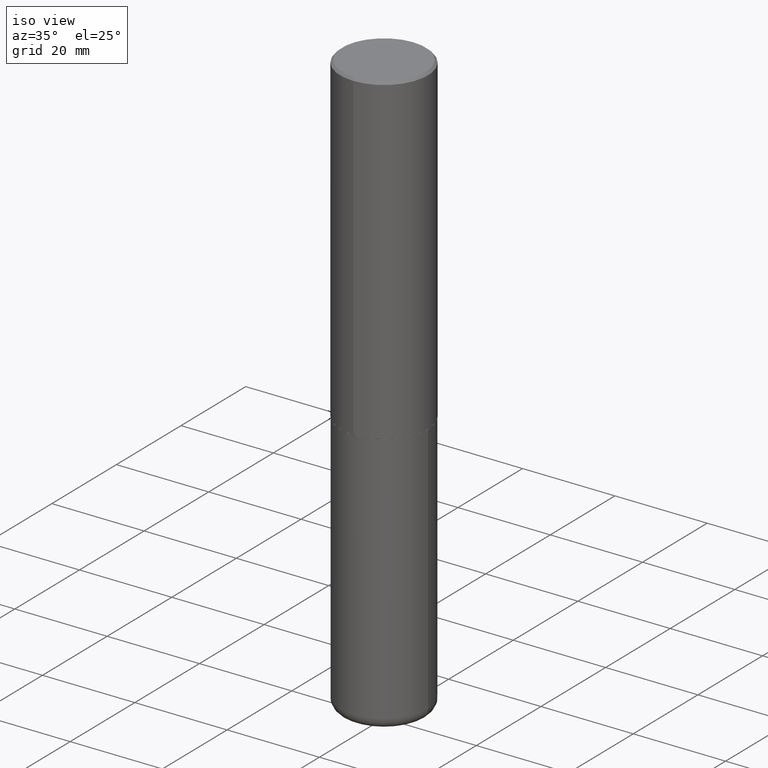
[diagram: clean part render]
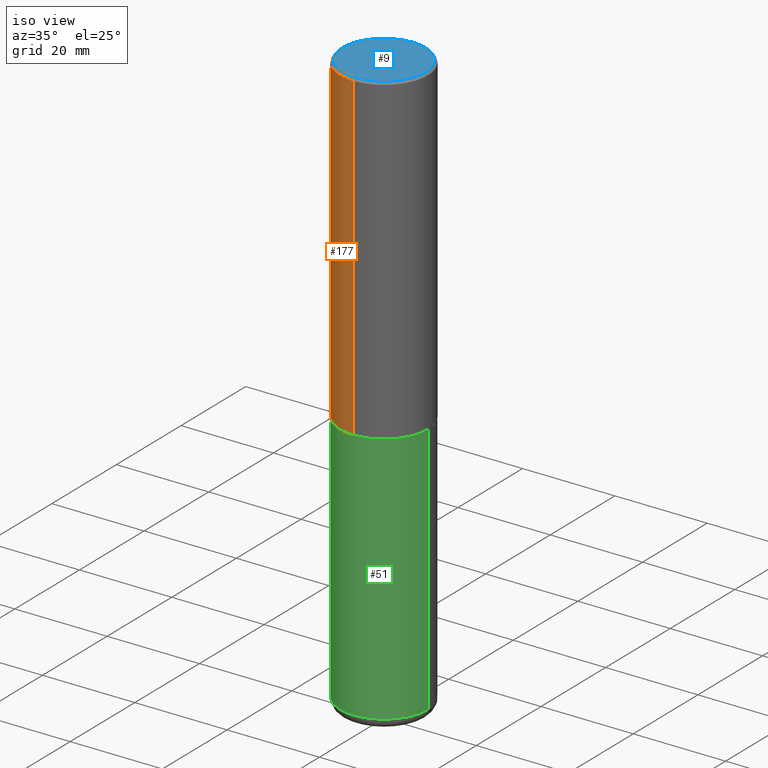
[diagram: same view with three faces highlighted in distinct colors, each labeled with its STEP entity id]
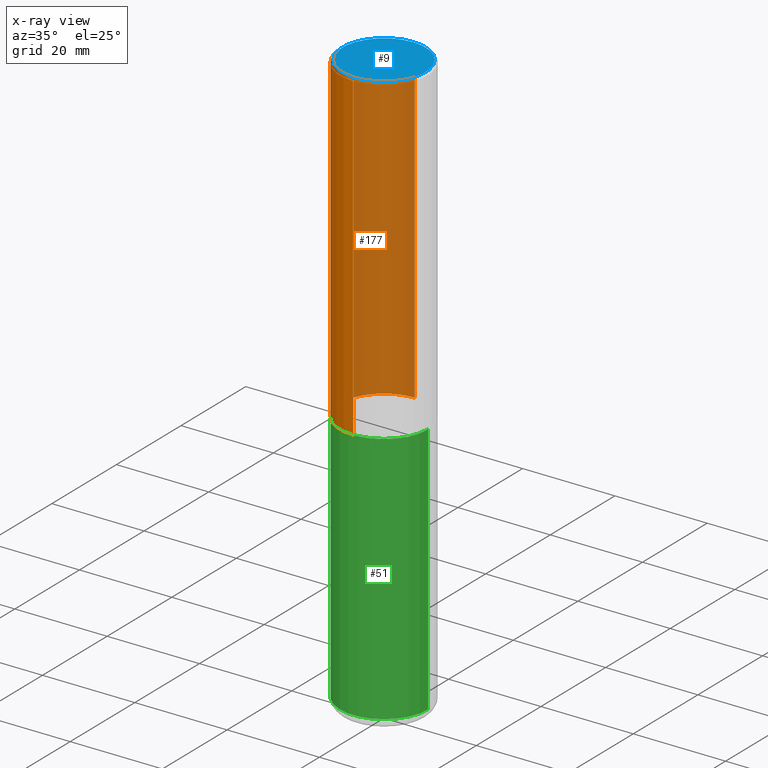
[diagram: x-ray of the same camera — body ghosted, the three highlighted faces saturated]
A machine part, iso view with three faces highlighted in distinct colors.
The next image is the same camera in x-ray (body ghosted, the three faces saturated) — at least one of them is partly hidden behind the body in this view.
Their STEP definitions:

[orange] entity #177 — the highlighted cylindrical surface (partial cylindrical patch) has radius 9.525 mm, axis along (-0, 0, 1).
#4 = ORIENTED_EDGE ( 'NONE', *, *, #355, .F. ) ;
#7 = VERTEX_POINT ( 'NONE', #367 ) ;
#14 = AXIS2_PLACEMENT_3D ( 'NONE', #318, #282, #312 ) ;
#24 = DIRECTION ( 'NONE',  ( -6.982962677686265922E-15, -1.000000000000000000, 2.913971193241877611E-15 ) ) ;
#57 = LINE ( 'NONE', #100, #384 ) ;
#72 = ORIENTED_EDGE ( 'NONE', *, *, #152, .T. ) ;
#78 = EDGE_LOOP ( 'NONE', ( #4, #134, #72, #238 ) ) ;
#100 = CARTESIAN_POINT ( 'NONE',  ( 2.664535259100376880E-15, 0.3750000000000002220, -1.308998548422625521E-15 ) ) ;
#126 = DIRECTION ( 'NONE',  ( -6.982962677686265922E-15, -1.000000000000000000, 3.494488891895536035E-15 ) ) ;
#134 = ORIENTED_EDGE ( 'NONE', *, *, #414, .T. ) ;
#142 = VERTEX_POINT ( 'NONE', #377 ) ;
#152 = EDGE_CURVE ( 'NONE', #397, #142, #370, .T. ) ;
#159 = CARTESIAN_POINT ( 'NONE',  ( 6.724165036897648492E-29, -9.595832025636787455E-15, -2.749000000000000110 ) ) ;
#176 = AXIS2_PLACEMENT_3D ( 'NONE', #381, #412, #126 ) ;
#177 = ADVANCED_FACE ( 'NONE', ( #286 ), #316, .T. ) ;
#218 = DIRECTION ( 'NONE',  ( -2.446040391741596606E-29, 3.490662795793665557E-15, 1.000000000000000000 ) ) ;
#238 = ORIENTED_EDGE ( 'NONE', *, *, #323, .F. ) ;
#250 = AXIS2_PLACEMENT_3D ( 'NONE', #159, #320, #24 ) ;
#253 = VERTEX_POINT ( 'NONE', #403 ) ;
#282 = DIRECTION ( 'NONE',  ( -2.446040391741596606E-29, 3.490662795793665557E-15, 1.000000000000000000 ) ) ;
#286 = FACE_OUTER_BOUND ( 'NONE', #78, .T. ) ;
#312 = DIRECTION ( 'NONE',  ( -6.982962677686266711E-15, -1.000000000000000000, 3.490662795793665951E-15 ) ) ;
#316 = CYLINDRICAL_SURFACE ( 'NONE', #14, 0.3750000000000002220 ) ;
#317 = CIRCLE ( 'NONE', #250, 0.3750000000000003886 ) ;
#318 = CARTESIAN_POINT ( 'NONE',  ( 0.000000000000000000, 0.000000000000000000, 0.000000000000000000 ) ) ;
#319 = CARTESIAN_POINT ( 'NONE',  ( -2.618611004132284935E-15, -0.3750000000000099920, -2.748999999999999222 ) ) ;
#320 = DIRECTION ( 'NONE',  ( -2.446040391741596606E-29, 3.490662795793665557E-15, 1.000000000000000000 ) ) ;
#323 = EDGE_CURVE ( 'NONE', #253, #142, #406, .T. ) ;
#355 = EDGE_CURVE ( 'NONE', #7, #253, #57, .T. ) ;
#367 = CARTESIAN_POINT ( 'NONE',  ( 2.664535259100411196E-15, 0.3749999999999907296, -2.749000000000000998 ) ) ;
#370 = LINE ( 'NONE', #401, #405 ) ;
#377 = CARTESIAN_POINT ( 'NONE',  ( -2.572686749164323547E-15, -0.3750000000000001110, -0.01999999999999877570 ) ) ;
#381 = CARTESIAN_POINT ( 'NONE',  ( 4.892080783483214581E-31, -6.981325591587361238E-17, -0.02000000000000008715 ) ) ;
#382 = DIRECTION ( 'NONE',  ( -2.446040391741596606E-29, 3.490662795793665557E-15, 1.000000000000000000 ) ) ;
#384 = VECTOR ( 'NONE', #382, 39.37007874015748143 ) ;
#397 = VERTEX_POINT ( 'NONE', #319 ) ;
#401 = CARTESIAN_POINT ( 'NONE',  ( -2.618611004132351594E-15, -0.3750000000000002220, 1.308998548422625521E-15 ) ) ;
#403 = CARTESIAN_POINT ( 'NONE',  ( 2.618611004132350411E-15, 0.3749999999999999445, -0.02000000000000139513 ) ) ;
#405 = VECTOR ( 'NONE', #218, 39.37007874015748143 ) ;
#406 = CIRCLE ( 'NONE', #176, 0.3750000000000000555 ) ;
#412 = DIRECTION ( 'NONE',  ( -2.446040391741596606E-29, 3.490662795793665557E-15, 1.000000000000000000 ) ) ;
#414 = EDGE_CURVE ( 'NONE', #7, #397, #317, .T. ) ;

[blue] entity #9 — the highlighted planar face has unit normal (0, -0, -1).
#6 = FACE_OUTER_BOUND ( 'NONE', #28, .T. ) ;
#8 = CARTESIAN_POINT ( 'NONE',  ( -1.141397163745304909E-45, 1.628849886601155835E-31, 4.666305460853910467E-17 ) ) ;
#9 = ADVANCED_FACE ( 'NONE', ( #6 ), #40, .F. ) ;
#28 = EDGE_LOOP ( 'NONE', ( #140, #120 ) ) ;
#33 = EDGE_CURVE ( 'NONE', #149, #213, #160, .T. ) ;
#40 = PLANE ( 'NONE',  #81 ) ;
#64 = CARTESIAN_POINT ( 'NONE',  ( 2.478951750578624209E-15, 0.3549999999999999822, -1.215853765202481601E-15 ) ) ;
#76 = DIRECTION ( 'NONE',  ( -6.982962677686265922E-15, -1.000000000000000000, 3.490662795793665557E-15 ) ) ;
#81 = AXIS2_PLACEMENT_3D ( 'NONE', #64, #339, #399 ) ;
#85 = EDGE_CURVE ( 'NONE', #213, #149, #294, .T. ) ;
#120 = ORIENTED_EDGE ( 'NONE', *, *, #85, .T. ) ;
#140 = ORIENTED_EDGE ( 'NONE', *, *, #33, .T. ) ;
#149 = VERTEX_POINT ( 'NONE', #153 ) ;
#153 = CARTESIAN_POINT ( 'NONE',  ( 2.548781377355487113E-15, 0.3549999999999999822, -1.192522237898212341E-15 ) ) ;
#160 = CIRCLE ( 'NONE', #175, 0.3549999999999999822 ) ;
#175 = AXIS2_PLACEMENT_3D ( 'NONE', #8, #271, #76 ) ;
#213 = VERTEX_POINT ( 'NONE', #374 ) ;
#271 = DIRECTION ( 'NONE',  ( -2.446040391741596606E-29, 3.490662795793665557E-15, 1.000000000000000000 ) ) ;
#284 = DIRECTION ( 'NONE',  ( -2.446040391741596606E-29, 3.490662795793665557E-15, 1.000000000000000000 ) ) ;
#294 = CIRCLE ( 'NONE', #379, 0.3549999999999999822 ) ;
#339 = DIRECTION ( 'NONE',  ( 2.446040391741596045E-29, -3.490662795793665557E-15, -1.000000000000000000 ) ) ;
#343 = CARTESIAN_POINT ( 'NONE',  ( -1.141397163745304909E-45, 1.628849886601155835E-31, 4.666305460853910467E-17 ) ) ;
#371 = DIRECTION ( 'NONE',  ( -6.982962677686265922E-15, -1.000000000000000000, 3.490662795793665557E-15 ) ) ;
#374 = CARTESIAN_POINT ( 'NONE',  ( -2.504081769186608216E-15, -0.3549999999999999822, 1.285848347115290366E-15 ) ) ;
#379 = AXIS2_PLACEMENT_3D ( 'NONE', #343, #284, #371 ) ;
#399 = DIRECTION ( 'NONE',  ( 6.982962677686265922E-15, 1.000000000000000000, -3.490662795793665557E-15 ) ) ;

[green] entity #51 — the highlighted cylindrical surface (partial cylindrical patch) has radius 9.525 mm, axis along (-0, 0, 1).
#3 = FACE_OUTER_BOUND ( 'NONE', #58, .T. ) ;
#37 = CARTESIAN_POINT ( 'NONE',  ( -0.3750000000000000555, -1.070783826866887333E-14, -2.750000000000000000 ) ) ;
#42 = CARTESIAN_POINT ( 'NONE',  ( 0.000000000000000000, 0.000000000000000000, 0.000000000000000000 ) ) ;
#46 = CARTESIAN_POINT ( 'NONE',  ( 6.725039217009124520E-29, -9.601573681818649859E-15, -2.750000000000000000 ) ) ;
#51 = ADVANCED_FACE ( 'NONE', ( #3 ), #137, .T. ) ;
#55 = VERTEX_POINT ( 'NONE', #37 ) ;
#56 = CARTESIAN_POINT ( 'NONE',  ( -0.3749999999999999445, 2.664535259100375303E-15, -1.844600658845589318E-29 ) ) ;
#58 = EDGE_LOOP ( 'NONE', ( #276, #287, #66, #145 ) ) ;
#60 = DIRECTION ( 'NONE',  ( 1.000000000000000000, -6.982962677686269077E-15, 0.000000000000000000 ) ) ;
#62 = VERTEX_POINT ( 'NONE', #170 ) ;
#66 = ORIENTED_EDGE ( 'NONE', *, *, #150, .T. ) ;
#102 = AXIS2_PLACEMENT_3D ( 'NONE', #46, #285, #248 ) ;
#113 = CARTESIAN_POINT ( 'NONE',  ( 0.3750000000000000555, -1.222018468595100145E-14, -2.750000000000000000 ) ) ;
#116 = CARTESIAN_POINT ( 'NONE',  ( 0.3749999999999999445, -2.618611004132349622E-15, 1.828566290923475642E-29 ) ) ;
#137 = CYLINDRICAL_SURFACE ( 'NONE', #227, 0.3749999999999999445 ) ;
#145 = ORIENTED_EDGE ( 'NONE', *, *, #187, .F. ) ;
#150 = EDGE_CURVE ( 'NONE', #277, #236, #340, .T. ) ;
#167 = VECTOR ( 'NONE', #408, 39.37007874015748143 ) ;
#170 = CARTESIAN_POINT ( 'NONE',  ( -0.3749999999999999445, -1.447863811461947092E-14, -4.910000000000000142 ) ) ;
#187 = EDGE_CURVE ( 'NONE', #55, #236, #410, .T. ) ;
#196 = DIRECTION ( 'NONE',  ( -2.445468806185136597E-29, 3.491481338843145583E-15, 1.000000000000000000 ) ) ;
#227 = AXIS2_PLACEMENT_3D ( 'NONE', #42, #361, #308 ) ;
#236 = VERTEX_POINT ( 'NONE', #113 ) ;
#248 = DIRECTION ( 'NONE',  ( 1.000000000000000000, -6.982962677686266711E-15, 0.000000000000000000 ) ) ;
#263 = CIRCLE ( 'NONE', #266, 0.3749999999999999445 ) ;
#266 = AXIS2_PLACEMENT_3D ( 'NONE', #295, #196, #60 ) ;
#268 = LINE ( 'NONE', #56, #336 ) ;
#276 = ORIENTED_EDGE ( 'NONE', *, *, #368, .F. ) ;
#277 = VERTEX_POINT ( 'NONE', #349 ) ;
#285 = DIRECTION ( 'NONE',  ( -2.445468806185136597E-29, 3.491481338843145583E-15, 1.000000000000000000 ) ) ;
#287 = ORIENTED_EDGE ( 'NONE', *, *, #313, .T. ) ;
#295 = CARTESIAN_POINT ( 'NONE',  ( 1.200725183836902132E-28, -1.714317337371984662E-14, -4.910000000000000142 ) ) ;
#308 = DIRECTION ( 'NONE',  ( 1.000000000000000000, -6.982962677686266711E-15, 4.876176775795935793E-29 ) ) ;
#313 = EDGE_CURVE ( 'NONE', #62, #277, #263, .T. ) ;
#336 = VECTOR ( 'NONE', #409, 39.37007874015748143 ) ;
#340 = LINE ( 'NONE', #116, #167 ) ;
#349 = CARTESIAN_POINT ( 'NONE',  ( 0.3749999999999999445, -1.976178437785219664E-14, -4.910000000000000142 ) ) ;
#361 = DIRECTION ( 'NONE',  ( -2.445468806185136597E-29, 3.491481338843145583E-15, 1.000000000000000000 ) ) ;
#368 = EDGE_CURVE ( 'NONE', #62, #55, #268, .T. ) ;
#408 = DIRECTION ( 'NONE',  ( -2.445468806185136877E-29, 3.491481338843145188E-15, 1.000000000000000000 ) ) ;
#409 = DIRECTION ( 'NONE',  ( -2.445468806185136877E-29, 3.491481338843145188E-15, 1.000000000000000000 ) ) ;
#410 = CIRCLE ( 'NONE', #102, 0.3750000000000000555 ) ;